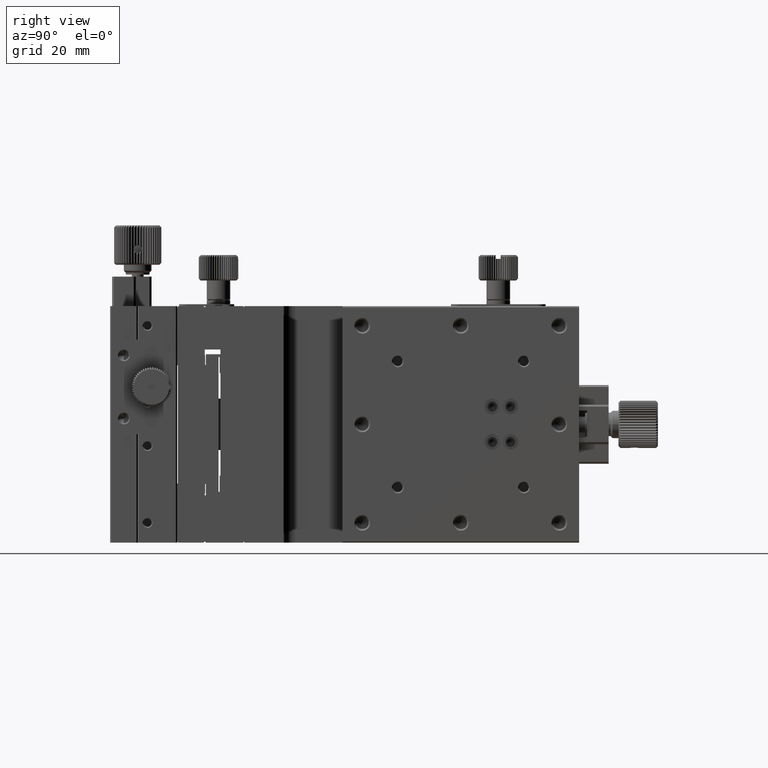
[diagram: clean part render]
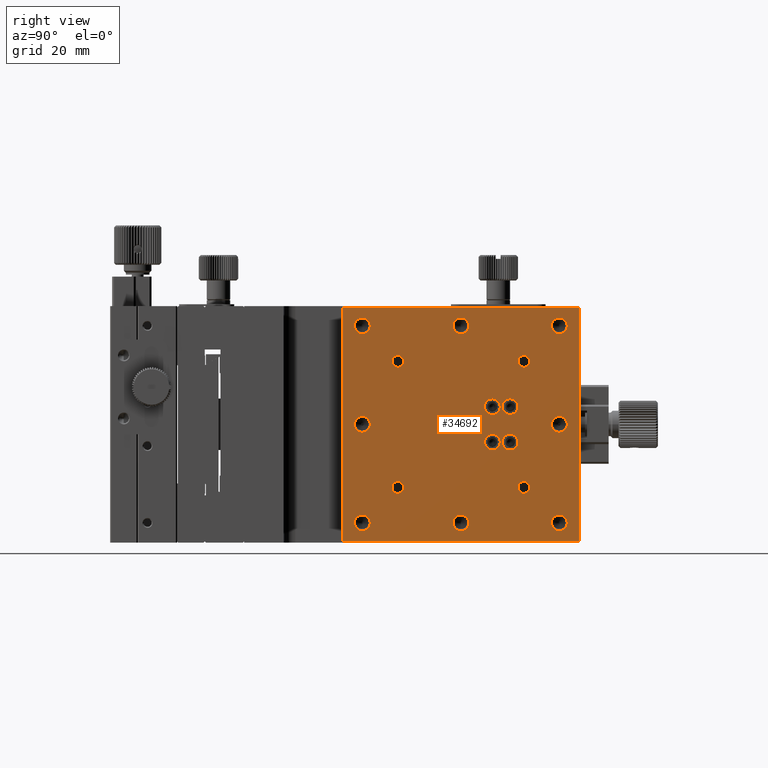
[diagram: same view with one face highlighted and labeled with its STEP entity id]
A machine part, right view. The second image highlights one B-rep face of the part: STEP entity #34692.
In plain terms, the highlighted planar face has unit normal (-1, 0, 0).
Its self-contained STEP definition (entity closure, byte-faithful):
#465 = CARTESIAN_POINT ( 'NONE',  ( 36.99999999994315658, 80.00000000000000000, -52.99999999999726441 ) ) ;
#524 = ORIENTED_EDGE ( 'NONE', *, *, #29178, .F. ) ;
#1168 = VERTEX_POINT ( 'NONE', #15213 ) ;
#1248 = AXIS2_PLACEMENT_3D ( 'NONE', #47313, #38717, #4289 ) ;
#1605 = AXIS2_PLACEMENT_3D ( 'NONE', #1998, #55136, #40542 ) ;
#1998 = CARTESIAN_POINT ( 'NONE',  ( 37.00000000000000000, 63.00000000000000000, -34.49999999999999289 ) ) ;
#2432 = DIRECTION ( 'NONE',  ( 1.227396053628219999E-16, 0.000000000000000000, 1.000000000000000000 ) ) ;
#2463 = VECTOR ( 'NONE', #2432, 1000.000000000000000 ) ;
#2527 = ORIENTED_EDGE ( 'NONE', *, *, #7748, .F. ) ;
#2867 = AXIS2_PLACEMENT_3D ( 'NONE', #33410, #18445, #42289 ) ;
#2902 = EDGE_LOOP ( 'NONE', ( #50726 ) ) ;
#3016 = VERTEX_POINT ( 'NONE', #15274 ) ;
#3049 = EDGE_CURVE ( 'NONE', #61394, #61394, #37142, .T. ) ;
#3572 = AXIS2_PLACEMENT_3D ( 'NONE', #40704, #60120, #16214 ) ;
#3895 = CARTESIAN_POINT ( 'NONE',  ( 36.99999999999999289, 25.00000000000000711, -59.69999999999999574 ) ) ;
#4067 = CIRCLE ( 'NONE', #32629, 2.000000000002728928 ) ;
#4289 = DIRECTION ( 'NONE',  ( 0.000000000000000000, 0.000000000000000000, 1.000000000000000000 ) ) ;
#4799 = AXIS2_PLACEMENT_3D ( 'NONE', #33243, #27527, #61254 ) ;
#5009 = DIRECTION ( 'NONE',  ( 1.000000000000000000, 0.000000000000000000, 0.000000000000000000 ) ) ;
#5228 = VERTEX_POINT ( 'NONE', #465 ) ;
#5522 = DIRECTION ( 'NONE',  ( 0.000000000000000000, 0.000000000000000000, 1.000000000000000000 ) ) ;
#5923 = CARTESIAN_POINT ( 'NONE',  ( 37.00000000000000000, 25.00000000000000711, -0.3000000000000150879 ) ) ;
#6177 = VERTEX_POINT ( 'NONE', #16720 ) ;
#6263 = CARTESIAN_POINT ( 'NONE',  ( 37.00000000000000000, 67.50000000000000000, -25.49999999999999645 ) ) ;
#6623 = DIRECTION ( 'NONE',  ( 1.000000000000000000, 0.000000000000000000, 0.000000000000000000 ) ) ;
#7191 = AXIS2_PLACEMENT_3D ( 'NONE', #59532, #29946, #20714 ) ;
#7362 = ORIENTED_EDGE ( 'NONE', *, *, #46622, .F. ) ;
#7519 = DIRECTION ( 'NONE',  ( -1.227396053628219999E-16, -0.000000000000000000, -1.000000000000000000 ) ) ;
#7554 = EDGE_CURVE ( 'NONE', #24440, #24440, #45730, .T. ) ;
#7681 = VERTEX_POINT ( 'NONE', #49680 ) ;
#7748 = EDGE_CURVE ( 'NONE', #20311, #20311, #20593, .T. ) ;
#7930 = AXIS2_PLACEMENT_3D ( 'NONE', #19374, #5009, #9783 ) ;
#7950 = CARTESIAN_POINT ( 'NONE',  ( 36.99999999994315658, 55.00000000000000711, -52.99999999999726441 ) ) ;
#8361 = FACE_BOUND ( 'NONE', #38322, .T. ) ;
#8576 = DIRECTION ( 'NONE',  ( 0.000000000000000000, 0.000000000000000000, 1.000000000000000000 ) ) ;
#9164 = EDGE_LOOP ( 'NONE', ( #51633 ) ) ;
#9531 = CIRCLE ( 'NONE', #19693, 1.499999999954525487 ) ;
#9783 = DIRECTION ( 'NONE',  ( 0.000000000000000000, 0.000000000000000000, 1.000000000000000000 ) ) ;
#10124 = ORIENTED_EDGE ( 'NONE', *, *, #48546, .F. ) ;
#11916 = FACE_BOUND ( 'NONE', #18717, .T. ) ;
#11999 = AXIS2_PLACEMENT_3D ( 'NONE', #36170, #46338, #60668 ) ;
#12224 = VERTEX_POINT ( 'NONE', #16702 ) ;
#12241 = CARTESIAN_POINT ( 'NONE',  ( 37.00000000000000000, 71.00000000000001421, -44.50000000002773248 ) ) ;
#12541 = FACE_BOUND ( 'NONE', #55439, .T. ) ;
#12840 = CIRCLE ( 'NONE', #14894, 1.999999999979990006 ) ;
#13032 = CARTESIAN_POINT ( 'NONE',  ( 36.99999999994315658, 80.00000000000000000, -28.00000000002000178 ) ) ;
#13152 = ORIENTED_EDGE ( 'NONE', *, *, #52042, .F. ) ;
#13803 = FACE_BOUND ( 'NONE', #50513, .T. ) ;
#14008 = LINE ( 'NONE', #30832, #48252 ) ;
#14563 = ORIENTED_EDGE ( 'NONE', *, *, #3049, .F. ) ;
#14704 = EDGE_LOOP ( 'NONE', ( #28853 ) ) ;
#14804 = VECTOR ( 'NONE', #37436, 1000.000000000000000 ) ;
#14894 = AXIS2_PLACEMENT_3D ( 'NONE', #20698, #6623, #26077 ) ;
#14908 = CARTESIAN_POINT ( 'NONE',  ( 37.00000000000000000, 67.50000000000000000, -36.50000000000000000 ) ) ;
#14975 = DIRECTION ( 'NONE',  ( 1.000000000000000000, 0.000000000000000000, 0.000000000000000000 ) ) ;
#15213 = CARTESIAN_POINT ( 'NONE',  ( 37.00000000000000000, 55.00000000000000711, -3.000000000042739146 ) ) ;
#15262 = DIRECTION ( 'NONE',  ( 0.000000000000000000, -1.000000000000000000, 0.000000000000000000 ) ) ;
#15274 = CARTESIAN_POINT ( 'NONE',  ( 36.99999999999998579, 85.00000000000000000, -59.69999999999999574 ) ) ;
#15666 = ORIENTED_EDGE ( 'NONE', *, *, #31833, .F. ) ;
#16214 = DIRECTION ( 'NONE',  ( 0.000000000000000000, 0.000000000000000000, 1.000000000000000000 ) ) ;
#16574 = AXIS2_PLACEMENT_3D ( 'NONE', #26919, #60989, #22754 ) ;
#16702 = CARTESIAN_POINT ( 'NONE',  ( 37.00000000000000000, 63.00000000000000000, -27.49999999999999645 ) ) ;
#16704 = AXIS2_PLACEMENT_3D ( 'NONE', #25464, #58885, #44887 ) ;
#16720 = CARTESIAN_POINT ( 'NONE',  ( 36.99999999994315658, 39.00000000000000711, -12.50000000004546763 ) ) ;
#17725 = CIRCLE ( 'NONE', #16704, 1.999999999957263297 ) ;
#17947 = FACE_BOUND ( 'NONE', #33444, .T. ) ;
#18445 = DIRECTION ( 'NONE',  ( 1.000000000000000000, 0.000000000000000000, 0.000000000000000000 ) ) ;
#18563 = ORIENTED_EDGE ( 'NONE', *, *, #45343, .F. ) ;
#18587 = PLANE ( 'NONE',  #56516 ) ;
#18709 = EDGE_CURVE ( 'NONE', #6177, #6177, #9531, .T. ) ;
#18717 = EDGE_LOOP ( 'NONE', ( #2527 ) ) ;
#19033 = VERTEX_POINT ( 'NONE', #24729 ) ;
#19184 = CIRCLE ( 'NONE', #56759, 1.499999999972259523 ) ;
#19353 = VERTEX_POINT ( 'NONE', #23478 ) ;
#19374 = CARTESIAN_POINT ( 'NONE',  ( 37.00000000000000000, 55.00000000000000711, -5.000000000000002665 ) ) ;
#19384 = VECTOR ( 'NONE', #7519, 1000.000000000000000 ) ;
#19557 = EDGE_LOOP ( 'NONE', ( #18563 ) ) ;
#19693 = AXIS2_PLACEMENT_3D ( 'NONE', #37713, #52958, #61906 ) ;
#19775 = EDGE_LOOP ( 'NONE', ( #30886 ) ) ;
#19952 = ORIENTED_EDGE ( 'NONE', *, *, #31731, .F. ) ;
#20017 = ORIENTED_EDGE ( 'NONE', *, *, #20227, .F. ) ;
#20227 = EDGE_CURVE ( 'NONE', #45344, #45344, #12840, .T. ) ;
#20311 = VERTEX_POINT ( 'NONE', #14908 ) ;
#20593 = CIRCLE ( 'NONE', #7191, 2.000000000000001776 ) ;
#20698 = CARTESIAN_POINT ( 'NONE',  ( 36.99999999994315658, 30.00000000000000711, -29.99999999999999289 ) ) ;
#20714 = DIRECTION ( 'NONE',  ( 0.000000000000000000, 0.000000000000000000, -1.000000000000000000 ) ) ;
#21232 = EDGE_CURVE ( 'NONE', #59672, #59672, #51574, .T. ) ;
#21388 = AXIS2_PLACEMENT_3D ( 'NONE', #50112, #59649, #5522 ) ;
#22754 = DIRECTION ( 'NONE',  ( 0.000000000000000000, 0.000000000000000000, -1.000000000000000000 ) ) ;
#22901 = ORIENTED_EDGE ( 'NONE', *, *, #35663, .F. ) ;
#23204 = ORIENTED_EDGE ( 'NONE', *, *, #29339, .F. ) ;
#23224 = EDGE_LOOP ( 'NONE', ( #22901 ) ) ;
#23337 = DIRECTION ( 'NONE',  ( -1.227396053628219999E-16, -0.000000000000000000, -1.000000000000000000 ) ) ;
#23478 = CARTESIAN_POINT ( 'NONE',  ( 37.00000000000000000, 39.00000000000000711, -44.50000000002773248 ) ) ;
#24440 = VERTEX_POINT ( 'NONE', #43858 ) ;
#24729 = CARTESIAN_POINT ( 'NONE',  ( 36.99999999994315658, 71.00000000000001421, -12.50000000004546763 ) ) ;
#25401 = CARTESIAN_POINT ( 'NONE',  ( 36.99999999999999289, 25.00000000000000711, -0.3000000000000117018 ) ) ;
#25464 = CARTESIAN_POINT ( 'NONE',  ( 37.00000000000000000, 30.00000000000000711, -5.000000000000002665 ) ) ;
#25531 = VERTEX_POINT ( 'NONE', #58310 ) ;
#25709 = DIRECTION ( 'NONE',  ( 0.000000000000000000, 0.000000000000000000, -1.000000000000000000 ) ) ;
#25766 = VERTEX_POINT ( 'NONE', #29930 ) ;
#26077 = DIRECTION ( 'NONE',  ( 0.000000000000000000, 0.000000000000000000, 1.000000000000000000 ) ) ;
#26562 = FACE_BOUND ( 'NONE', #19775, .T. ) ;
#26629 = LINE ( 'NONE', #5923, #14804 ) ;
#26841 = EDGE_LOOP ( 'NONE', ( #14563 ) ) ;
#26919 = CARTESIAN_POINT ( 'NONE',  ( 37.00000000000000000, 63.00000000000000000, -25.49999999999999645 ) ) ;
#27505 = FACE_BOUND ( 'NONE', #19557, .T. ) ;
#27527 = DIRECTION ( 'NONE',  ( 1.000000000000000000, 0.000000000000000000, 0.000000000000000000 ) ) ;
#27801 = FACE_BOUND ( 'NONE', #39427, .T. ) ;
#28333 = CIRCLE ( 'NONE', #7930, 1.999999999957263297 ) ;
#28667 = CARTESIAN_POINT ( 'NONE',  ( 36.99999999994315658, 80.00000000000000000, -54.99999999999999289 ) ) ;
#28773 = EDGE_CURVE ( 'NONE', #25766, #25766, #17725, .T. ) ;
#28853 = ORIENTED_EDGE ( 'NONE', *, *, #7554, .F. ) ;
#29178 = EDGE_CURVE ( 'NONE', #3016, #60416, #14008, .T. ) ;
#29235 = DIRECTION ( 'NONE',  ( 1.000000000000000000, -0.000000000000000000, -0.000000000000000000 ) ) ;
#29339 = EDGE_CURVE ( 'NONE', #60416, #31918, #34976, .T. ) ;
#29673 = EDGE_LOOP ( 'NONE', ( #19952 ) ) ;
#29930 = CARTESIAN_POINT ( 'NONE',  ( 37.00000000000000000, 30.00000000000000711, -3.000000000042739146 ) ) ;
#29946 = DIRECTION ( 'NONE',  ( 1.000000000000000000, -0.000000000000000000, -0.000000000000000000 ) ) ;
#30517 = EDGE_LOOP ( 'NONE', ( #15666 ) ) ;
#30589 = DIRECTION ( 'NONE',  ( 1.000000000000000000, 0.000000000000000000, 0.000000000000000000 ) ) ;
#30832 = CARTESIAN_POINT ( 'NONE',  ( 36.99999999999999289, 25.00000000000000711, -59.69999999999999574 ) ) ;
#30886 = ORIENTED_EDGE ( 'NONE', *, *, #21232, .F. ) ;
#31482 = EDGE_CURVE ( 'NONE', #19353, #19353, #19184, .T. ) ;
#31577 = VERTEX_POINT ( 'NONE', #7950 ) ;
#31731 = EDGE_CURVE ( 'NONE', #19033, #19033, #49655, .T. ) ;
#31772 = CARTESIAN_POINT ( 'NONE',  ( 36.99999999999999289, 25.00000000000000711, -59.69999999999999574 ) ) ;
#31833 = EDGE_CURVE ( 'NONE', #48295, #48295, #37516, .T. ) ;
#31918 = VERTEX_POINT ( 'NONE', #25401 ) ;
#32226 = ORIENTED_EDGE ( 'NONE', *, *, #31482, .F. ) ;
#32285 = FACE_OUTER_BOUND ( 'NONE', #42480, .T. ) ;
#32629 = AXIS2_PLACEMENT_3D ( 'NONE', #28667, #14975, #8576 ) ;
#33243 = CARTESIAN_POINT ( 'NONE',  ( 37.00000000000000000, 71.00000000000001421, -45.99999999999999289 ) ) ;
#33410 = CARTESIAN_POINT ( 'NONE',  ( 36.99999999994315658, 71.00000000000001421, -13.99999999999999289 ) ) ;
#33444 = EDGE_LOOP ( 'NONE', ( #32226 ) ) ;
#33496 = CARTESIAN_POINT ( 'NONE',  ( 36.99999999999998579, 25.00000000000000711, -59.69999999999999574 ) ) ;
#34692 = ADVANCED_FACE ( 'NONE', ( #32285, #27801, #51676, #55486, #12541, #46922, #8361, #27505, #47224, #61544, #26562, #17947, #37358, #56752, #11916, #13803, #37674 ), #18587, .F. ) ;
#34976 = LINE ( 'NONE', #31772, #2463 ) ;
#35663 = EDGE_CURVE ( 'NONE', #1168, #1168, #28333, .T. ) ;
#36170 = CARTESIAN_POINT ( 'NONE',  ( 37.00000000000000000, 80.00000000000000000, -4.999999999999992895 ) ) ;
#37142 = CIRCLE ( 'NONE', #3572, 1.999999999979990006 ) ;
#37358 = FACE_BOUND ( 'NONE', #2902, .T. ) ;
#37436 = DIRECTION ( 'NONE',  ( -0.000000000000000000, 1.000000000000000000, -0.000000000000000000 ) ) ;
#37486 = LINE ( 'NONE', #56874, #19384 ) ;
#37516 = CIRCLE ( 'NONE', #62935, 2.000000000000001776 ) ;
#37674 = FACE_BOUND ( 'NONE', #42148, .T. ) ;
#37713 = CARTESIAN_POINT ( 'NONE',  ( 36.99999999994315658, 39.00000000000000711, -13.99999999999999289 ) ) ;
#37748 = CARTESIAN_POINT ( 'NONE',  ( 37.00000000000000000, 63.00000000000000000, -36.50000000000000000 ) ) ;
#37980 = DIRECTION ( 'NONE',  ( -1.000000000000000000, 0.000000000000000000, 1.227396053628219999E-16 ) ) ;
#38322 = EDGE_LOOP ( 'NONE', ( #39904 ) ) ;
#38717 = DIRECTION ( 'NONE',  ( 1.000000000000000000, 0.000000000000000000, 0.000000000000000000 ) ) ;
#39427 = EDGE_LOOP ( 'NONE', ( #53723 ) ) ;
#39904 = ORIENTED_EDGE ( 'NONE', *, *, #59955, .F. ) ;
#40542 = DIRECTION ( 'NONE',  ( 0.000000000000000000, 0.000000000000000000, -1.000000000000000000 ) ) ;
#40704 = CARTESIAN_POINT ( 'NONE',  ( 36.99999999994315658, 80.00000000000000000, -29.99999999999999289 ) ) ;
#41338 = EDGE_CURVE ( 'NONE', #48228, #48228, #58533, .T. ) ;
#42148 = EDGE_LOOP ( 'NONE', ( #10124 ) ) ;
#42289 = DIRECTION ( 'NONE',  ( 0.000000000000000000, 0.000000000000000000, 1.000000000000000000 ) ) ;
#42480 = EDGE_LOOP ( 'NONE', ( #13152, #23204, #524, #7362 ) ) ;
#43858 = CARTESIAN_POINT ( 'NONE',  ( 36.99999999994315658, 30.00000000000000711, -52.99999999999726441 ) ) ;
#44137 = CARTESIAN_POINT ( 'NONE',  ( 37.00000000000000000, 67.50000000000000000, -27.49999999999999645 ) ) ;
#44887 = DIRECTION ( 'NONE',  ( 0.000000000000000000, 0.000000000000000000, 1.000000000000000000 ) ) ;
#45343 = EDGE_CURVE ( 'NONE', #5228, #5228, #4067, .T. ) ;
#45344 = VERTEX_POINT ( 'NONE', #50759 ) ;
#45730 = CIRCLE ( 'NONE', #21388, 2.000000000002728928 ) ;
#46338 = DIRECTION ( 'NONE',  ( 1.000000000000000000, 0.000000000000000000, 0.000000000000000000 ) ) ;
#46622 = EDGE_CURVE ( 'NONE', #7681, #3016, #37486, .T. ) ;
#46922 = FACE_BOUND ( 'NONE', #14704, .T. ) ;
#47224 = FACE_BOUND ( 'NONE', #26841, .T. ) ;
#47313 = CARTESIAN_POINT ( 'NONE',  ( 36.99999999994315658, 55.00000000000000711, -54.99999999999999289 ) ) ;
#48228 = VERTEX_POINT ( 'NONE', #37748 ) ;
#48252 = VECTOR ( 'NONE', #15262, 1000.000000000000000 ) ;
#48295 = VERTEX_POINT ( 'NONE', #44137 ) ;
#48546 = EDGE_CURVE ( 'NONE', #12224, #12224, #51086, .T. ) ;
#49655 = CIRCLE ( 'NONE', #2867, 1.499999999954525487 ) ;
#49673 = CARTESIAN_POINT ( 'NONE',  ( 37.00000000000000000, 39.00000000000000711, -45.99999999999999289 ) ) ;
#49680 = CARTESIAN_POINT ( 'NONE',  ( 37.00000000000000000, 85.00000000000000000, -0.3000000000000140332 ) ) ;
#50112 = CARTESIAN_POINT ( 'NONE',  ( 36.99999999994315658, 30.00000000000000711, -54.99999999999999289 ) ) ;
#50513 = EDGE_LOOP ( 'NONE', ( #54055 ) ) ;
#50726 = ORIENTED_EDGE ( 'NONE', *, *, #18709, .F. ) ;
#50759 = CARTESIAN_POINT ( 'NONE',  ( 36.99999999994315658, 30.00000000000000711, -28.00000000002000178 ) ) ;
#51086 = CIRCLE ( 'NONE', #16574, 2.000000000000001776 ) ;
#51574 = CIRCLE ( 'NONE', #4799, 1.499999999972259523 ) ;
#51633 = ORIENTED_EDGE ( 'NONE', *, *, #28773, .F. ) ;
#51676 = FACE_BOUND ( 'NONE', #23224, .T. ) ;
#52042 = EDGE_CURVE ( 'NONE', #31918, #7681, #26629, .T. ) ;
#52958 = DIRECTION ( 'NONE',  ( 1.000000000000000000, 0.000000000000000000, 0.000000000000000000 ) ) ;
#53723 = ORIENTED_EDGE ( 'NONE', *, *, #54775, .F. ) ;
#53793 = DIRECTION ( 'NONE',  ( 0.000000000000000000, 0.000000000000000000, 1.000000000000000000 ) ) ;
#54055 = ORIENTED_EDGE ( 'NONE', *, *, #41338, .F. ) ;
#54775 = EDGE_CURVE ( 'NONE', #25531, #25531, #55665, .T. ) ;
#55136 = DIRECTION ( 'NONE',  ( 1.000000000000000000, -0.000000000000000000, -0.000000000000000000 ) ) ;
#55439 = EDGE_LOOP ( 'NONE', ( #20017 ) ) ;
#55486 = FACE_BOUND ( 'NONE', #9164, .T. ) ;
#55665 = CIRCLE ( 'NONE', #11999, 1.999999999957253749 ) ;
#56516 = AXIS2_PLACEMENT_3D ( 'NONE', #3895, #37980, #23337 ) ;
#56752 = FACE_BOUND ( 'NONE', #30517, .T. ) ;
#56759 = AXIS2_PLACEMENT_3D ( 'NONE', #49673, #30589, #53793 ) ;
#56874 = CARTESIAN_POINT ( 'NONE',  ( 36.99999999999999289, 85.00000000000000000, -59.69999999999999574 ) ) ;
#57134 = CIRCLE ( 'NONE', #1248, 2.000000000002728928 ) ;
#58310 = CARTESIAN_POINT ( 'NONE',  ( 37.00000000000000000, 80.00000000000000000, -3.000000000042739146 ) ) ;
#58533 = CIRCLE ( 'NONE', #1605, 2.000000000000001776 ) ;
#58885 = DIRECTION ( 'NONE',  ( 1.000000000000000000, 0.000000000000000000, 0.000000000000000000 ) ) ;
#59532 = CARTESIAN_POINT ( 'NONE',  ( 37.00000000000000000, 67.50000000000000000, -34.49999999999999289 ) ) ;
#59649 = DIRECTION ( 'NONE',  ( 1.000000000000000000, 0.000000000000000000, 0.000000000000000000 ) ) ;
#59672 = VERTEX_POINT ( 'NONE', #12241 ) ;
#59955 = EDGE_CURVE ( 'NONE', #31577, #31577, #57134, .T. ) ;
#60120 = DIRECTION ( 'NONE',  ( 1.000000000000000000, 0.000000000000000000, 0.000000000000000000 ) ) ;
#60416 = VERTEX_POINT ( 'NONE', #33496 ) ;
#60668 = DIRECTION ( 'NONE',  ( 0.000000000000000000, 0.000000000000000000, 1.000000000000000000 ) ) ;
#60989 = DIRECTION ( 'NONE',  ( 1.000000000000000000, -0.000000000000000000, -0.000000000000000000 ) ) ;
#61254 = DIRECTION ( 'NONE',  ( 0.000000000000000000, 0.000000000000000000, 1.000000000000000000 ) ) ;
#61394 = VERTEX_POINT ( 'NONE', #13032 ) ;
#61544 = FACE_BOUND ( 'NONE', #29673, .T. ) ;
#61906 = DIRECTION ( 'NONE',  ( 0.000000000000000000, 0.000000000000000000, 1.000000000000000000 ) ) ;
#62935 = AXIS2_PLACEMENT_3D ( 'NONE', #6263, #29235, #25709 ) ;